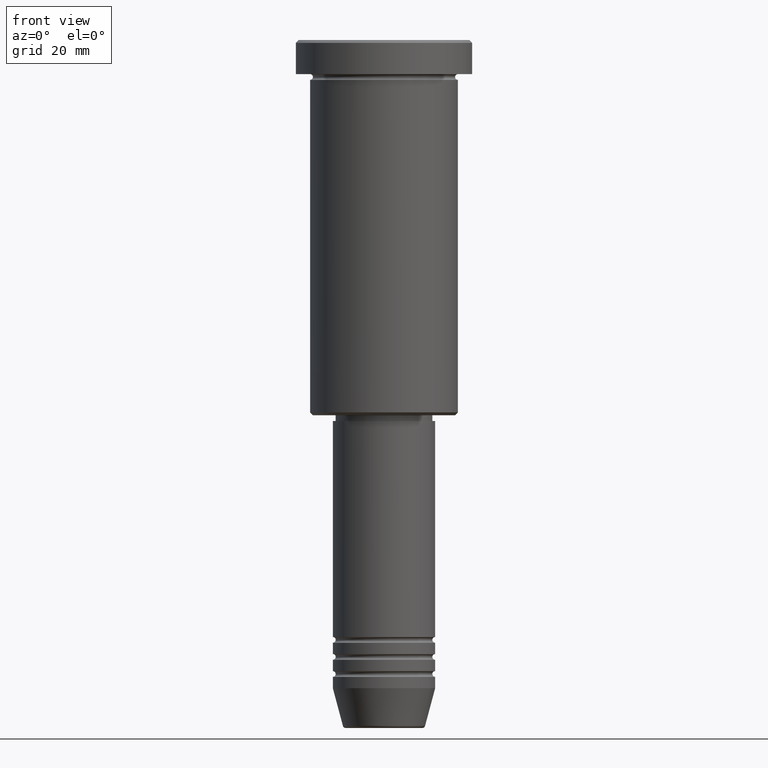
[diagram: clean part render]
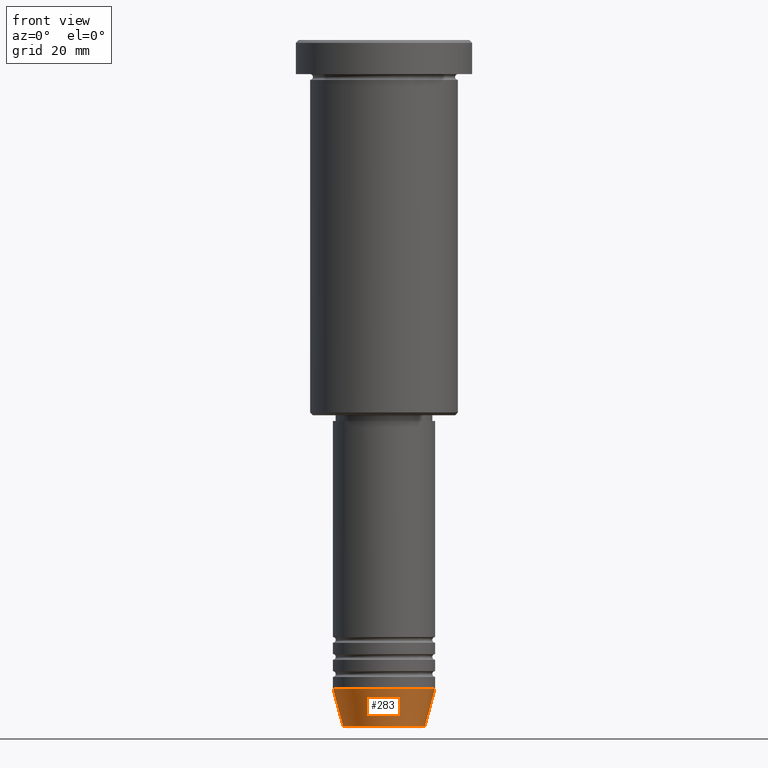
[diagram: same view with one face highlighted and labeled with its STEP entity id]
A machine part, front view. The second image highlights one B-rep face of the part: STEP entity #283.
In plain terms, the highlighted conical surface has half-angle 15 deg.
Its self-contained STEP definition (entity closure, byte-faithful):
#19 = DIRECTION ( 'NONE',  ( -0.000000000000000000, -0.000000000000000000, 1.000000000000000000 ) ) ;
#28 = DIRECTION ( 'NONE',  ( 0.2588190451025213501, 0.000000000000000000, 0.9659258262890680902 ) ) ;
#62 = CARTESIAN_POINT ( 'NONE',  ( -7.223655072137198374, 9.934123627281771026E-16, -120.6294095225512564 ) ) ;
#105 = VERTEX_POINT ( 'NONE', #915 ) ;
#107 = CARTESIAN_POINT ( 'NONE',  ( 0.000000000000000000, 0.000000000000000000, -114.0000000000000142 ) ) ;
#111 = VERTEX_POINT ( 'NONE', #174 ) ;
#147 = VERTEX_POINT ( 'NONE', #62 ) ;
#156 = CARTESIAN_POINT ( 'NONE',  ( 0.000000000000000000, 0.000000000000000000, -120.6294095225512564 ) ) ;
#174 = CARTESIAN_POINT ( 'NONE',  ( 7.223655072137197486, 0.000000000000000000, -120.6294095225512564 ) ) ;
#216 = LINE ( 'NONE', #1110, #1078 ) ;
#254 = AXIS2_PLACEMENT_3D ( 'NONE', #413, #19, #1122 ) ;
#277 = EDGE_CURVE ( 'NONE', #111, #985, #315, .T. ) ;
#283 = ADVANCED_FACE ( 'NONE', ( #856 ), #680, .T. ) ;
#315 = LINE ( 'NONE', #323, #1133 ) ;
#320 = EDGE_CURVE ( 'NONE', #105, #985, #583, .T. ) ;
#323 = CARTESIAN_POINT ( 'NONE',  ( 9.000000000000000000, 0.000000000000000000, -114.0000000000000142 ) ) ;
#344 = DIRECTION ( 'NONE',  ( 1.000000000000000000, 0.000000000000000000, 0.000000000000000000 ) ) ;
#370 = AXIS2_PLACEMENT_3D ( 'NONE', #107, #488, #668 ) ;
#381 = ORIENTED_EDGE ( 'NONE', *, *, #919, .T. ) ;
#413 = CARTESIAN_POINT ( 'NONE',  ( 0.000000000000000000, 0.000000000000000000, -114.0000000000000142 ) ) ;
#446 = DIRECTION ( 'NONE',  ( -0.000000000000000000, -0.000000000000000000, 1.000000000000000000 ) ) ;
#480 = CIRCLE ( 'NONE', #628, 7.223655072137197486 ) ;
#488 = DIRECTION ( 'NONE',  ( -0.000000000000000000, -0.000000000000000000, 1.000000000000000000 ) ) ;
#583 = CIRCLE ( 'NONE', #370, 9.000000000000000000 ) ;
#628 = AXIS2_PLACEMENT_3D ( 'NONE', #156, #446, #344 ) ;
#668 = DIRECTION ( 'NONE',  ( 1.000000000000000000, 0.000000000000000000, 0.000000000000000000 ) ) ;
#672 = EDGE_LOOP ( 'NONE', ( #1113, #381, #1117, #727 ) ) ;
#680 = CONICAL_SURFACE ( 'NONE', #254, 9.000000000000000000, 0.2617993877991500740 ) ;
#692 = EDGE_CURVE ( 'NONE', #147, #105, #216, .T. ) ;
#727 = ORIENTED_EDGE ( 'NONE', *, *, #320, .F. ) ;
#755 = DIRECTION ( 'NONE',  ( -0.2588190451025213501, 3.169619151431772337E-17, 0.9659258262890680902 ) ) ;
#809 = CARTESIAN_POINT ( 'NONE',  ( 9.000000000000000000, 0.000000000000000000, -114.0000000000000142 ) ) ;
#856 = FACE_OUTER_BOUND ( 'NONE', #672, .T. ) ;
#915 = CARTESIAN_POINT ( 'NONE',  ( -9.000000000000000000, 1.102182119232617714E-15, -114.0000000000000142 ) ) ;
#919 = EDGE_CURVE ( 'NONE', #147, #111, #480, .T. ) ;
#985 = VERTEX_POINT ( 'NONE', #809 ) ;
#1078 = VECTOR ( 'NONE', #755, 1000.000000000000000 ) ;
#1110 = CARTESIAN_POINT ( 'NONE',  ( -9.000000000000000000, 1.102182119232617714E-15, -114.0000000000000142 ) ) ;
#1113 = ORIENTED_EDGE ( 'NONE', *, *, #692, .F. ) ;
#1117 = ORIENTED_EDGE ( 'NONE', *, *, #277, .T. ) ;
#1122 = DIRECTION ( 'NONE',  ( 1.000000000000000000, 0.000000000000000000, 0.000000000000000000 ) ) ;
#1133 = VECTOR ( 'NONE', #28, 1000.000000000000000 ) ;